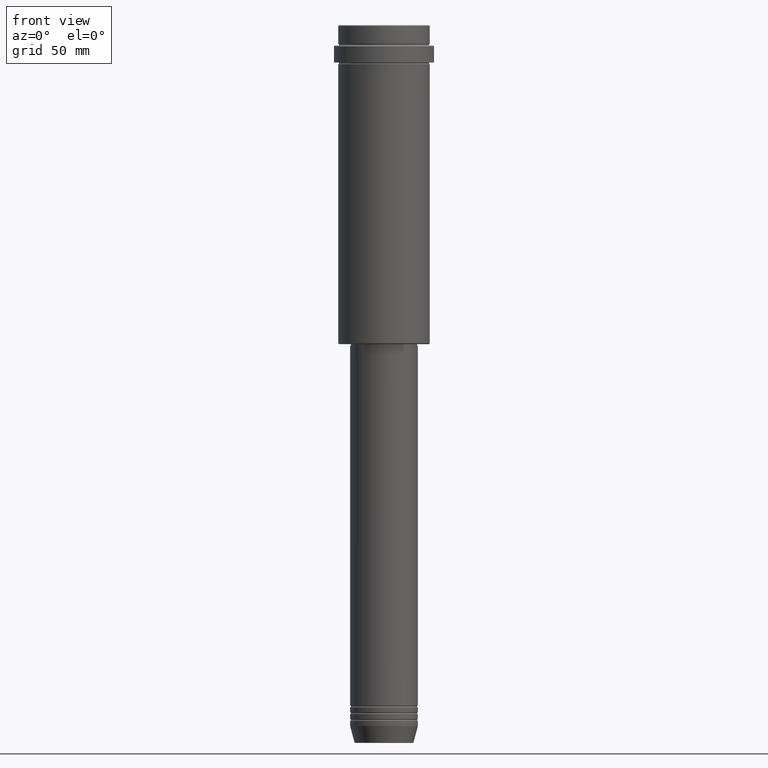
[diagram: clean part render]
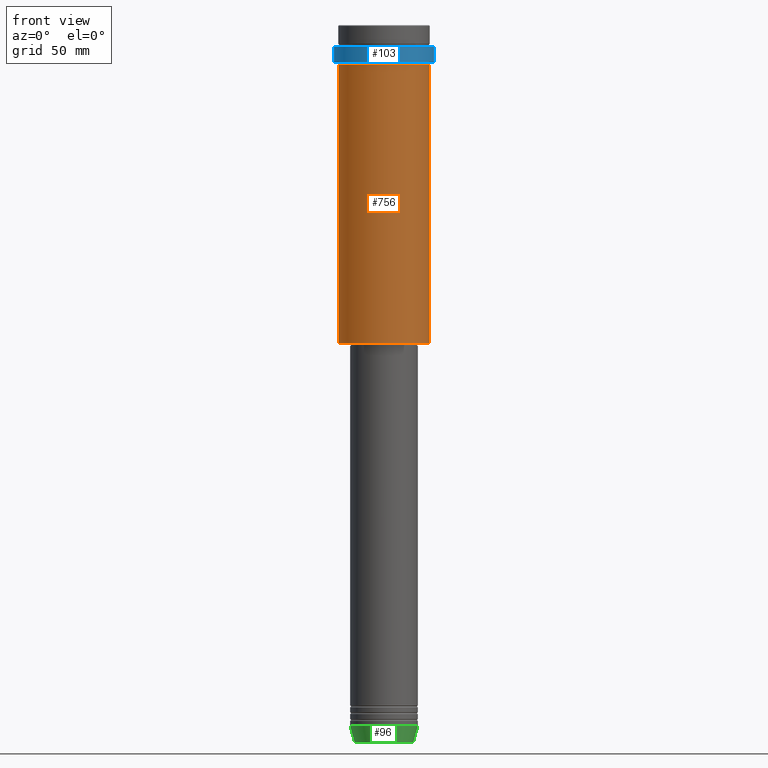
[diagram: same view with three faces highlighted in distinct colors, each labeled with its STEP entity id]
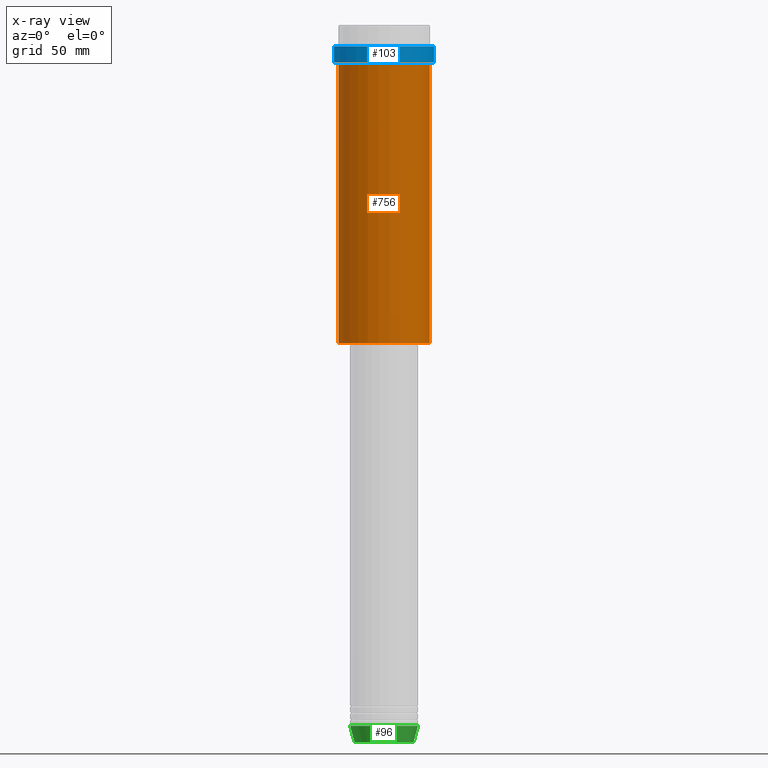
[diagram: x-ray of the same camera — body ghosted, the three highlighted faces saturated]
A machine part, front view with three faces highlighted in distinct colors.
The next image is the same camera in x-ray (body ghosted, the three faces saturated) — at least one of them is partly hidden behind the body in this view.
Their STEP definitions:

[orange] entity #756 — the highlighted cylindrical surface (partial cylindrical patch) has radius 27 mm, axis along (-0, -0, 1).
#67 = VERTEX_POINT ( 'NONE', #845 ) ;
#70 = EDGE_CURVE ( 'NONE', #67, #1015, #214, .T. ) ;
#95 = DIRECTION ( 'NONE',  ( 1.000000000000000000, 0.000000000000000000, 0.000000000000000000 ) ) ;
#119 = VECTOR ( 'NONE', #194, 1000.000000000000000 ) ;
#138 = CARTESIAN_POINT ( 'NONE',  ( 27.00000000000000355, 0.000000000000000000, -23.00000000000001421 ) ) ;
#193 = DIRECTION ( 'NONE',  ( -0.000000000000000000, -0.000000000000000000, 1.000000000000000000 ) ) ;
#194 = DIRECTION ( 'NONE',  ( -0.000000000000000000, -0.000000000000000000, 1.000000000000000000 ) ) ;
#211 = CARTESIAN_POINT ( 'NONE',  ( 0.000000000000000000, 0.000000000000000000, -187.5000000000000284 ) ) ;
#214 = CIRCLE ( 'NONE', #1017, 27.00000000000000355 ) ;
#244 = VERTEX_POINT ( 'NONE', #1237 ) ;
#252 = ORIENTED_EDGE ( 'NONE', *, *, #1322, .T. ) ;
#296 = CARTESIAN_POINT ( 'NONE',  ( 27.00000000000000355, 0.000000000000000000, 0.000000000000000000 ) ) ;
#298 = DIRECTION ( 'NONE',  ( 1.000000000000000000, 0.000000000000000000, 0.000000000000000000 ) ) ;
#336 = LINE ( 'NONE', #662, #1275 ) ;
#344 = EDGE_CURVE ( 'NONE', #244, #1015, #426, .T. ) ;
#354 = AXIS2_PLACEMENT_3D ( 'NONE', #211, #453, #988 ) ;
#392 = DIRECTION ( 'NONE',  ( -0.000000000000000000, -0.000000000000000000, 1.000000000000000000 ) ) ;
#426 = LINE ( 'NONE', #296, #119 ) ;
#442 = EDGE_LOOP ( 'NONE', ( #683, #252, #1176, #571 ) ) ;
#453 = DIRECTION ( 'NONE',  ( -0.000000000000000000, -0.000000000000000000, 1.000000000000000000 ) ) ;
#571 = ORIENTED_EDGE ( 'NONE', *, *, #70, .F. ) ;
#581 = AXIS2_PLACEMENT_3D ( 'NONE', #1394, #193, #95 ) ;
#662 = CARTESIAN_POINT ( 'NONE',  ( -27.00000000000000355, 3.306546357697854128E-15, 0.000000000000000000 ) ) ;
#674 = CIRCLE ( 'NONE', #354, 27.00000000000000355 ) ;
#683 = ORIENTED_EDGE ( 'NONE', *, *, #883, .F. ) ;
#734 = CYLINDRICAL_SURFACE ( 'NONE', #581, 27.00000000000000355 ) ;
#756 = ADVANCED_FACE ( 'NONE', ( #1065 ), #734, .T. ) ;
#845 = CARTESIAN_POINT ( 'NONE',  ( -27.00000000000000355, 3.306546357697854128E-15, -23.00000000000001421 ) ) ;
#883 = EDGE_CURVE ( 'NONE', #892, #67, #336, .T. ) ;
#892 = VERTEX_POINT ( 'NONE', #894 ) ;
#894 = CARTESIAN_POINT ( 'NONE',  ( -27.00000000000000355, 3.306546357697854128E-15, -187.5000000000000284 ) ) ;
#988 = DIRECTION ( 'NONE',  ( -1.000000000000000000, 0.000000000000000000, 0.000000000000000000 ) ) ;
#1015 = VERTEX_POINT ( 'NONE', #138 ) ;
#1017 = AXIS2_PLACEMENT_3D ( 'NONE', #1283, #392, #298 ) ;
#1065 = FACE_OUTER_BOUND ( 'NONE', #442, .T. ) ;
#1108 = DIRECTION ( 'NONE',  ( -0.000000000000000000, -0.000000000000000000, 1.000000000000000000 ) ) ;
#1176 = ORIENTED_EDGE ( 'NONE', *, *, #344, .T. ) ;
#1237 = CARTESIAN_POINT ( 'NONE',  ( 27.00000000000000355, 0.000000000000000000, -187.5000000000000284 ) ) ;
#1275 = VECTOR ( 'NONE', #1108, 1000.000000000000000 ) ;
#1283 = CARTESIAN_POINT ( 'NONE',  ( 0.000000000000000000, 0.000000000000000000, -23.00000000000001421 ) ) ;
#1322 = EDGE_CURVE ( 'NONE', #892, #244, #674, .T. ) ;
#1394 = CARTESIAN_POINT ( 'NONE',  ( 0.000000000000000000, 0.000000000000000000, 0.000000000000000000 ) ) ;

[blue] entity #103 — the highlighted cylindrical surface (partial cylindrical patch) has radius 29.5 mm, axis along (-0, -0, 1).
#54 = AXIS2_PLACEMENT_3D ( 'NONE', #347, #986, #544 ) ;
#103 = ADVANCED_FACE ( 'NONE', ( #179 ), #578, .T. ) ;
#150 = LINE ( 'NONE', #370, #1362 ) ;
#179 = FACE_OUTER_BOUND ( 'NONE', #266, .T. ) ;
#181 = ORIENTED_EDGE ( 'NONE', *, *, #1234, .T. ) ;
#241 = VERTEX_POINT ( 'NONE', #794 ) ;
#266 = EDGE_LOOP ( 'NONE', ( #312, #1174, #181, #740 ) ) ;
#312 = ORIENTED_EDGE ( 'NONE', *, *, #573, .F. ) ;
#316 = DIRECTION ( 'NONE',  ( 1.000000000000000000, 0.000000000000000000, 0.000000000000000000 ) ) ;
#322 = CARTESIAN_POINT ( 'NONE',  ( 0.000000000000000000, 0.000000000000000000, -12.50000000000000355 ) ) ;
#347 = CARTESIAN_POINT ( 'NONE',  ( 0.000000000000000000, 0.000000000000000000, -22.00000000000000711 ) ) ;
#370 = CARTESIAN_POINT ( 'NONE',  ( -29.50000000000000000, 3.612708057484691604E-15, 0.000000000000000000 ) ) ;
#371 = VERTEX_POINT ( 'NONE', #752 ) ;
#406 = AXIS2_PLACEMENT_3D ( 'NONE', #322, #757, #440 ) ;
#440 = DIRECTION ( 'NONE',  ( 1.000000000000000000, 0.000000000000000000, 0.000000000000000000 ) ) ;
#455 = VERTEX_POINT ( 'NONE', #1010 ) ;
#482 = EDGE_CURVE ( 'NONE', #455, #968, #1407, .T. ) ;
#537 = CIRCLE ( 'NONE', #406, 29.50000000000000000 ) ;
#544 = DIRECTION ( 'NONE',  ( 1.000000000000000000, 0.000000000000000000, 0.000000000000000000 ) ) ;
#566 = CARTESIAN_POINT ( 'NONE',  ( 0.000000000000000000, 0.000000000000000000, 0.000000000000000000 ) ) ;
#573 = EDGE_CURVE ( 'NONE', #455, #371, #150, .T. ) ;
#575 = CARTESIAN_POINT ( 'NONE',  ( 29.49999999999999645, 0.000000000000000000, -22.00000000000000711 ) ) ;
#578 = CYLINDRICAL_SURFACE ( 'NONE', #1313, 29.50000000000000000 ) ;
#661 = DIRECTION ( 'NONE',  ( -0.000000000000000000, -0.000000000000000000, 1.000000000000000000 ) ) ;
#740 = ORIENTED_EDGE ( 'NONE', *, *, #927, .T. ) ;
#752 = CARTESIAN_POINT ( 'NONE',  ( -29.50000000000000000, 3.612708057484691604E-15, -12.50000000000000355 ) ) ;
#757 = DIRECTION ( 'NONE',  ( 0.000000000000000000, 0.000000000000000000, -1.000000000000000000 ) ) ;
#794 = CARTESIAN_POINT ( 'NONE',  ( 29.50000000000000000, 0.000000000000000000, -12.50000000000000355 ) ) ;
#927 = EDGE_CURVE ( 'NONE', #241, #371, #537, .T. ) ;
#968 = VERTEX_POINT ( 'NONE', #575 ) ;
#986 = DIRECTION ( 'NONE',  ( -0.000000000000000000, -0.000000000000000000, 1.000000000000000000 ) ) ;
#1010 = CARTESIAN_POINT ( 'NONE',  ( -29.49999999999999645, 3.612708057484690815E-15, -22.00000000000000711 ) ) ;
#1023 = DIRECTION ( 'NONE',  ( -0.000000000000000000, -0.000000000000000000, 1.000000000000000000 ) ) ;
#1174 = ORIENTED_EDGE ( 'NONE', *, *, #482, .T. ) ;
#1203 = CARTESIAN_POINT ( 'NONE',  ( 29.50000000000000000, 0.000000000000000000, 0.000000000000000000 ) ) ;
#1234 = EDGE_CURVE ( 'NONE', #968, #241, #1327, .T. ) ;
#1250 = DIRECTION ( 'NONE',  ( -0.000000000000000000, -0.000000000000000000, 1.000000000000000000 ) ) ;
#1313 = AXIS2_PLACEMENT_3D ( 'NONE', #566, #1023, #316 ) ;
#1319 = VECTOR ( 'NONE', #661, 1000.000000000000000 ) ;
#1327 = LINE ( 'NONE', #1203, #1319 ) ;
#1362 = VECTOR ( 'NONE', #1250, 1000.000000000000000 ) ;
#1407 = CIRCLE ( 'NONE', #54, 29.49999999999999645 ) ;

[green] entity #96 — the highlighted conical surface has half-angle 15 deg.
#48 = DIRECTION ( 'NONE',  ( 1.000000000000000000, 0.000000000000000000, 0.000000000000000000 ) ) ;
#92 = VERTEX_POINT ( 'NONE', #277 ) ;
#96 = ADVANCED_FACE ( 'NONE', ( #1164 ), #1292, .T. ) ;
#262 = DIRECTION ( 'NONE',  ( 0.2588190451025211836, 0.000000000000000000, 0.9659258262890680902 ) ) ;
#277 = CARTESIAN_POINT ( 'NONE',  ( 17.41980749484382684, 0.000000000000000000, -422.6294095225512137 ) ) ;
#294 = LINE ( 'NONE', #424, #764 ) ;
#337 = CARTESIAN_POINT ( 'NONE',  ( 0.000000000000000000, 0.000000000000000000, -413.0000000000000000 ) ) ;
#361 = ORIENTED_EDGE ( 'NONE', *, *, #1013, .T. ) ;
#413 = EDGE_CURVE ( 'NONE', #1257, #92, #995, .T. ) ;
#424 = CARTESIAN_POINT ( 'NONE',  ( -20.00000000000000000, 2.449293598294706513E-15, -413.0000000000000000 ) ) ;
#472 = VECTOR ( 'NONE', #262, 1000.000000000000114 ) ;
#516 = EDGE_CURVE ( 'NONE', #991, #1344, #1334, .T. ) ;
#645 = DIRECTION ( 'NONE',  ( -0.2588190451025211836, 3.169619151431770488E-17, 0.9659258262890680902 ) ) ;
#709 = DIRECTION ( 'NONE',  ( -0.000000000000000000, -0.000000000000000000, 1.000000000000000000 ) ) ;
#753 = ORIENTED_EDGE ( 'NONE', *, *, #791, .F. ) ;
#761 = AXIS2_PLACEMENT_3D ( 'NONE', #1397, #709, #1154 ) ;
#764 = VECTOR ( 'NONE', #645, 1000.000000000000114 ) ;
#765 = DIRECTION ( 'NONE',  ( 1.000000000000000000, 0.000000000000000000, 0.000000000000000000 ) ) ;
#775 = CARTESIAN_POINT ( 'NONE',  ( 20.00000000000000000, 0.000000000000000000, -413.0000000000000000 ) ) ;
#785 = EDGE_LOOP ( 'NONE', ( #753, #1043, #361, #1011 ) ) ;
#791 = EDGE_CURVE ( 'NONE', #1257, #991, #294, .T. ) ;
#797 = CARTESIAN_POINT ( 'NONE',  ( -20.00000000000000000, 2.449293598294706513E-15, -413.0000000000000000 ) ) ;
#903 = DIRECTION ( 'NONE',  ( -0.000000000000000000, -0.000000000000000000, 1.000000000000000000 ) ) ;
#991 = VERTEX_POINT ( 'NONE', #797 ) ;
#995 = CIRCLE ( 'NONE', #1202, 17.41980749484382684 ) ;
#1011 = ORIENTED_EDGE ( 'NONE', *, *, #516, .F. ) ;
#1013 = EDGE_CURVE ( 'NONE', #92, #1344, #1353, .T. ) ;
#1043 = ORIENTED_EDGE ( 'NONE', *, *, #413, .T. ) ;
#1120 = CARTESIAN_POINT ( 'NONE',  ( 0.000000000000000000, 0.000000000000000000, -422.6294095225512137 ) ) ;
#1154 = DIRECTION ( 'NONE',  ( 1.000000000000000000, 0.000000000000000000, 0.000000000000000000 ) ) ;
#1157 = DIRECTION ( 'NONE',  ( -0.000000000000000000, -0.000000000000000000, 1.000000000000000000 ) ) ;
#1164 = FACE_OUTER_BOUND ( 'NONE', #785, .T. ) ;
#1202 = AXIS2_PLACEMENT_3D ( 'NONE', #1120, #903, #765 ) ;
#1215 = CARTESIAN_POINT ( 'NONE',  ( -17.41980749484382684, 2.291302373663531915E-15, -422.6294095225512137 ) ) ;
#1247 = CARTESIAN_POINT ( 'NONE',  ( 20.00000000000000000, 0.000000000000000000, -413.0000000000000000 ) ) ;
#1257 = VERTEX_POINT ( 'NONE', #1215 ) ;
#1292 = CONICAL_SURFACE ( 'NONE', #761, 20.00000000000000000, 0.2617993877991499074 ) ;
#1334 = CIRCLE ( 'NONE', #1385, 20.00000000000000000 ) ;
#1344 = VERTEX_POINT ( 'NONE', #775 ) ;
#1353 = LINE ( 'NONE', #1247, #472 ) ;
#1385 = AXIS2_PLACEMENT_3D ( 'NONE', #337, #1157, #48 ) ;
#1397 = CARTESIAN_POINT ( 'NONE',  ( 0.000000000000000000, 0.000000000000000000, -413.0000000000000000 ) ) ;